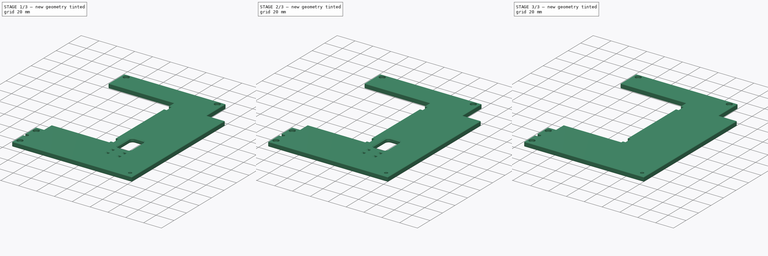
[diagram: build sequence overview — one tinted view per stage of 3, left to right]
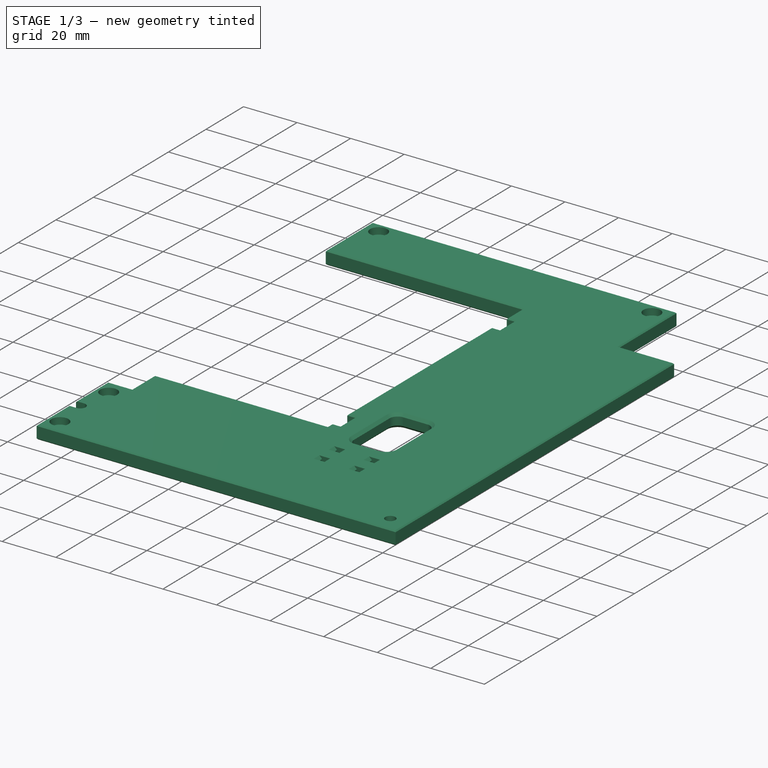
[diagram: stage 1 of 3 — iso view after this stage's code; geometry added in this stage tinted green]
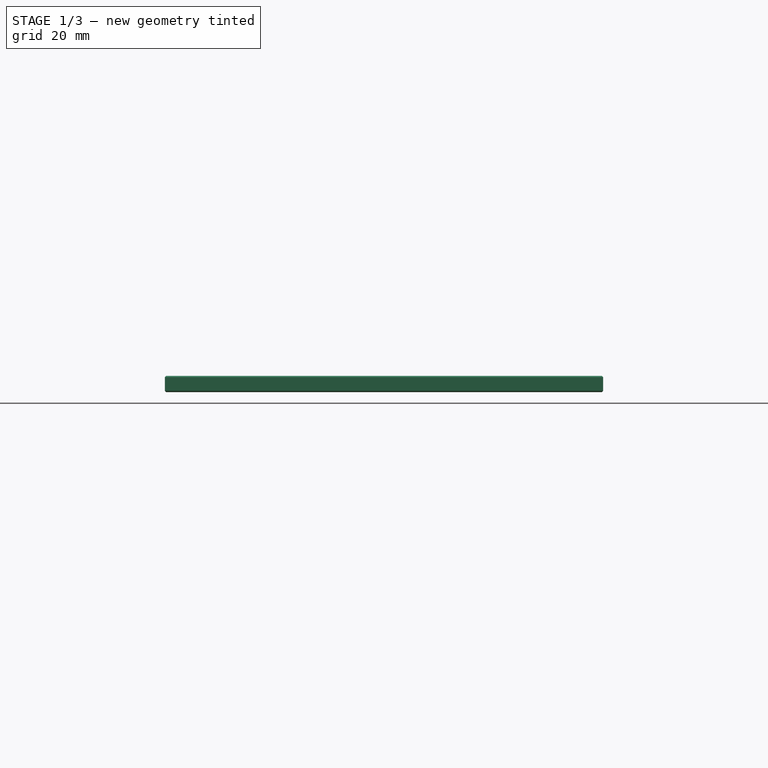
[diagram: stage 1 of 3 — front view after this stage's code; geometry added in this stage tinted green]
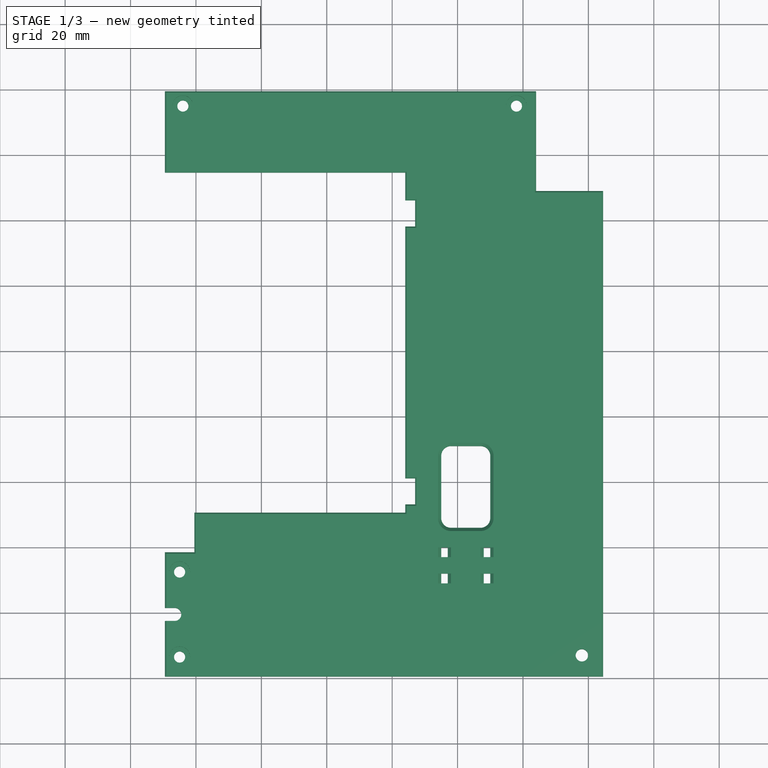
[diagram: stage 1 of 3 — top view after this stage's code; geometry added in this stage tinted green]
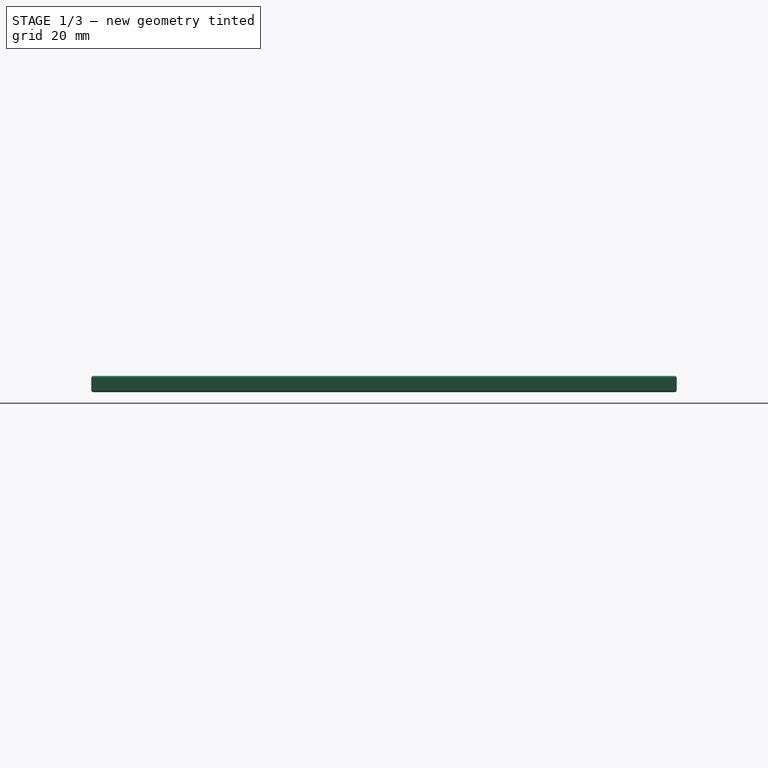
[diagram: stage 1 of 3 — right view after this stage's code; geometry added in this stage tinted green]
FCSTD DOCUMENT  (FreeCAD 0.19R24366 (Git))
Label: bottom-panel-4PR-250
License: All rights reserved
LicenseURL: http://en.wikipedia.org/wiki/All_rights_reserved
objects: PartDesign::FeatureBase×2, Sketcher::SketchObject×2, PartDesign::Body×2, Part::Feature×1, PartDesign::Pocket×1, PartDesign::Chamfer×1, PartDesign::Pad×1
note: 13 computed .brp shape members not serialized (recipe doc carries the construction recipe); baked Part::Feature solids carry a one-line shape summary decoded from their .brp

FEATURE [Part::Feature] Part__Feature081  label="panel-BL"
  shape: bbox 134 x 179 x 5 mm, 131 faces (baked)
FEATURE [PartDesign::FeatureBase] BaseFeature
  BaseFeature = -> Part__Feature081
FEATURE [Sketcher::SketchObject] Sketch
  ExternalGeometry = -> [BaseFeature]
  FullyConstrained = true
  MapMode = 5
  Placement = pos=(0,0,5) rot=(0,0,1;0rad)
  Support = -> [BaseFeature]
  sketch-geometry (4):
    g0: ArcOfCircle CenterX=-186.5 CenterY=19.5 CenterZ=0 NormalX=0 NormalY=0 NormalZ=1 AngleXU=0 Radius=2 StartAngle=4.71239 EndAngle=7.85398
    g1: LineSegment StartX=-189.5 StartY=21.5 StartZ=0 EndX=-186.5 EndY=21.5 EndZ=0
    g2: LineSegment StartX=-189.5 StartY=17.5 StartZ=0 EndX=-186.5 EndY=17.5 EndZ=0
    g3: LineSegment StartX=-189.5 StartY=21.5 StartZ=0 EndX=-189.5 EndY=17.5 EndZ=0
  constraints (14):
    c: Vertical(g0,g0)
    c: Vertical(g0,g0)
    c: Radius(g0) = 2
    c: PointOnObject(g1,g-5)
    c: Coincident(g1,g0)
    c: Horizontal(g1)
    c: PointOnObject(g2,g-5)
    c: Coincident(g2,g0)
    c: Horizontal(g2)
    c: Coincident(g3,g1)
    c: Coincident(g3,g2)
    c: DistanceX(g2,g0) = 3
    c: DistanceY(g-3,g-4) = 26
    c: DistanceY(g0,g-4) = 13
FEATURE [PartDesign::Pocket] Pocket
  BaseFeature = -> BaseFeature
  Length = 5
  Length2 = 100
  Profile = -> Sketch
  Type = 0
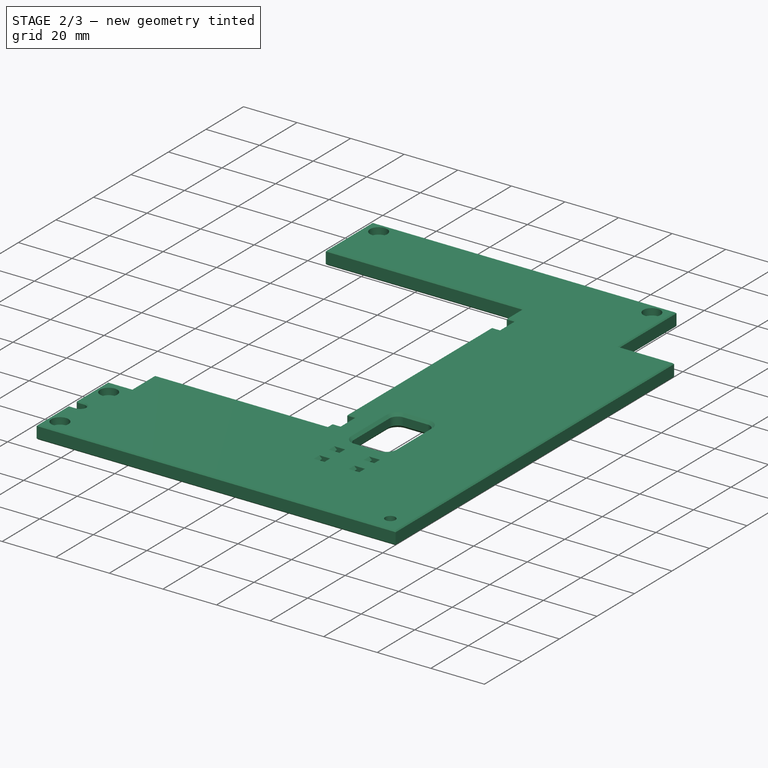
[diagram: stage 2 of 3 — iso view after this stage's code; geometry added in this stage tinted green]
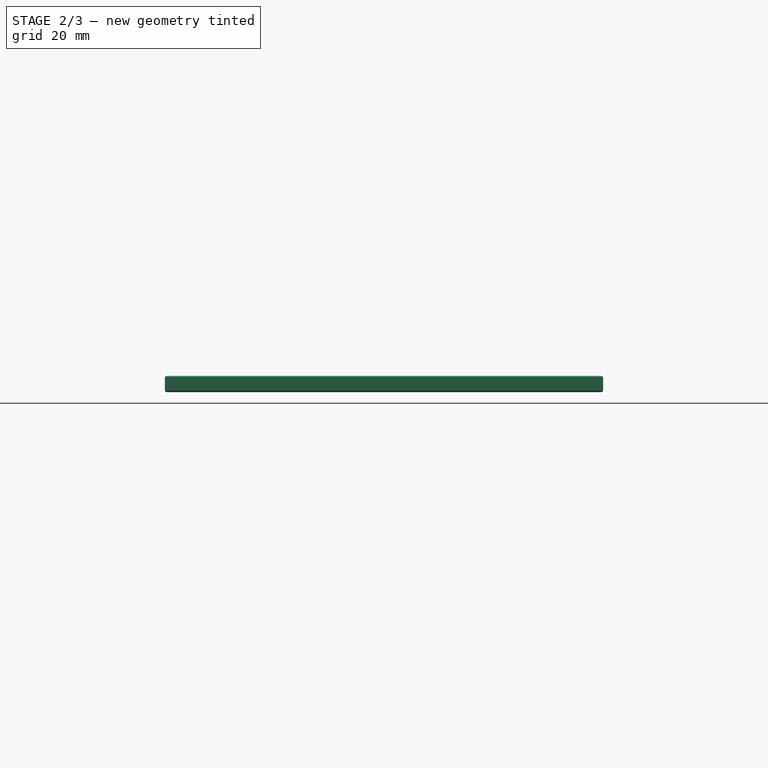
[diagram: stage 2 of 3 — front view after this stage's code; geometry added in this stage tinted green]
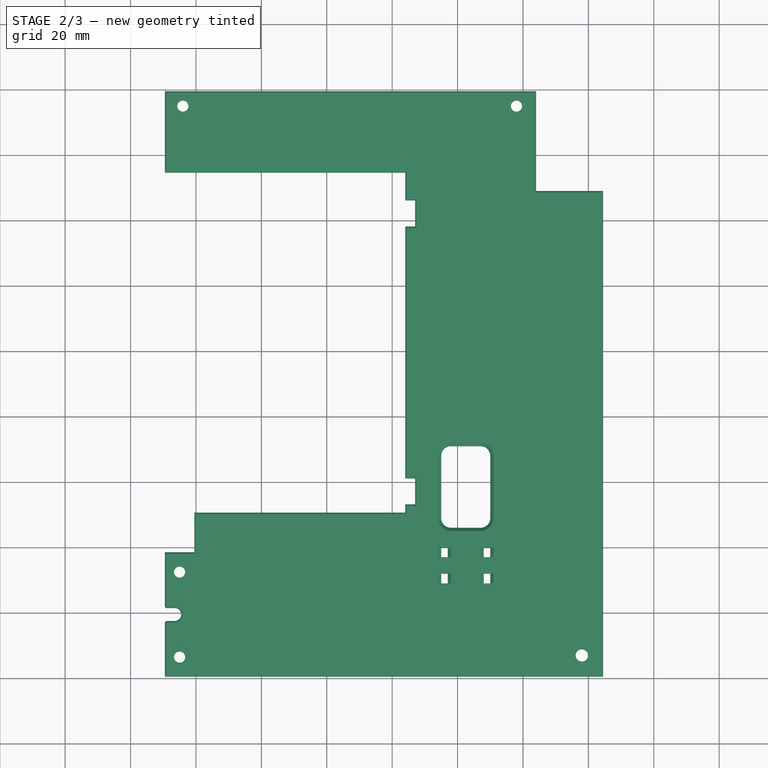
[diagram: stage 2 of 3 — top view after this stage's code; geometry added in this stage tinted green]
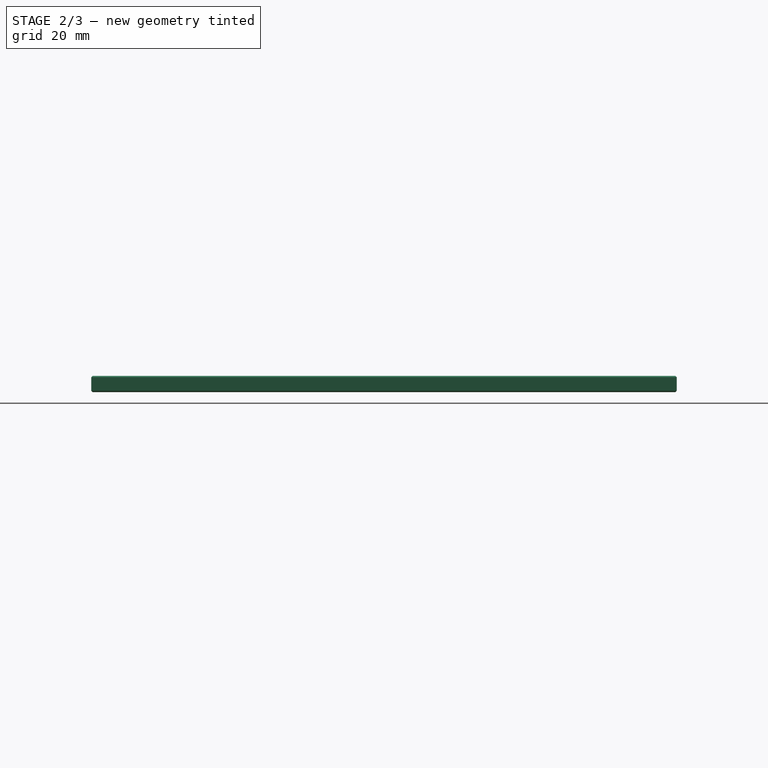
[diagram: stage 2 of 3 — right view after this stage's code; geometry added in this stage tinted green]
FEATURE [PartDesign::Chamfer] Chamfer
  Angle = 45
  Base = -> Pocket [Edge82,Edge79,Edge80,Edge78,Edge74,Edge73,Edge76,Edge81,Edge4,Edge3,Edge2,Edge71]
  BaseFeature = -> Pocket
  ChamferType = 0
  FlipDirection = false
  Size = 0.4
  Size2 = 1
  SupportTransform = false
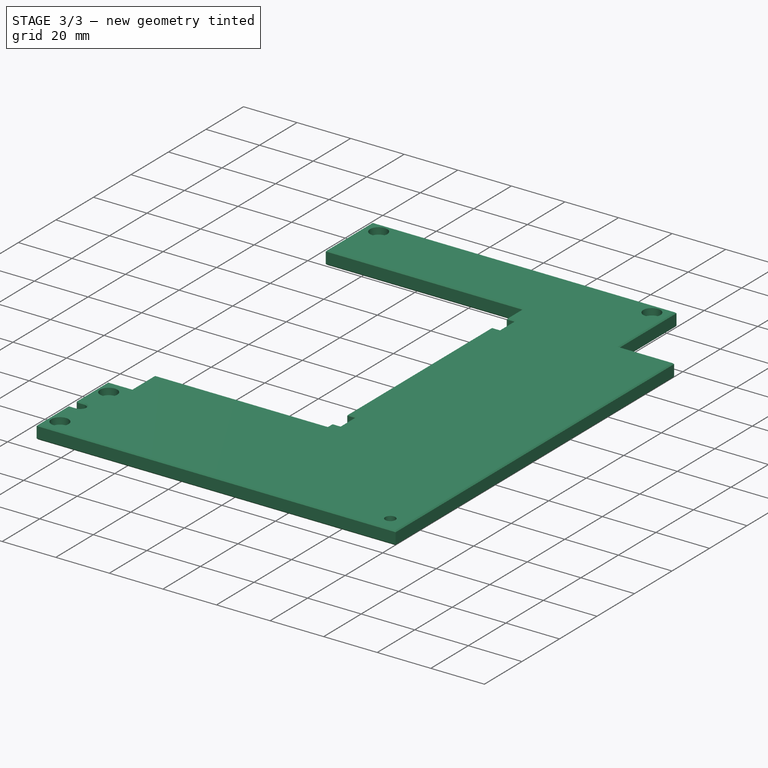
[diagram: stage 3 of 3 — iso view after this stage's code; geometry added in this stage tinted green]
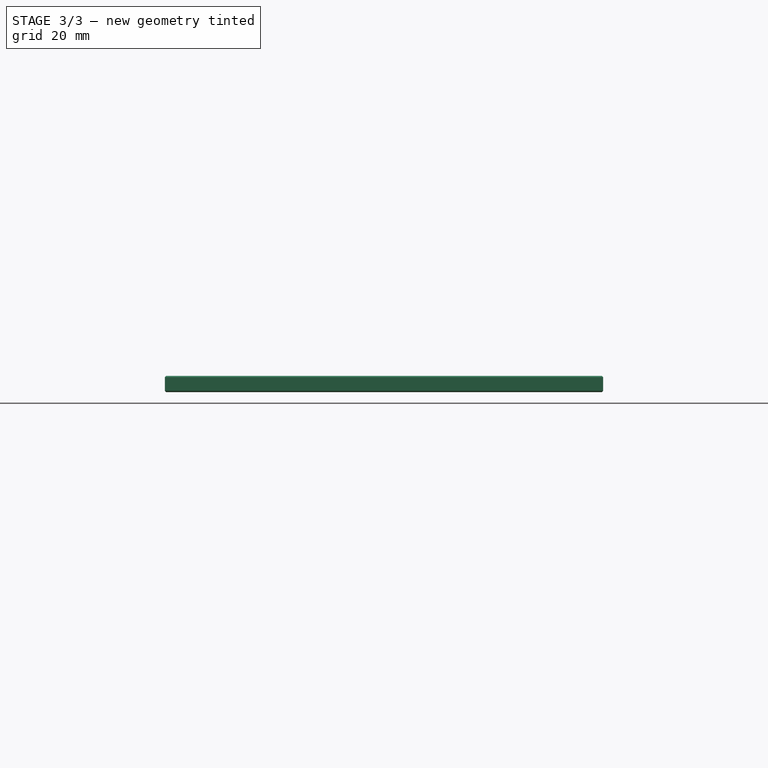
[diagram: stage 3 of 3 — front view after this stage's code; geometry added in this stage tinted green]
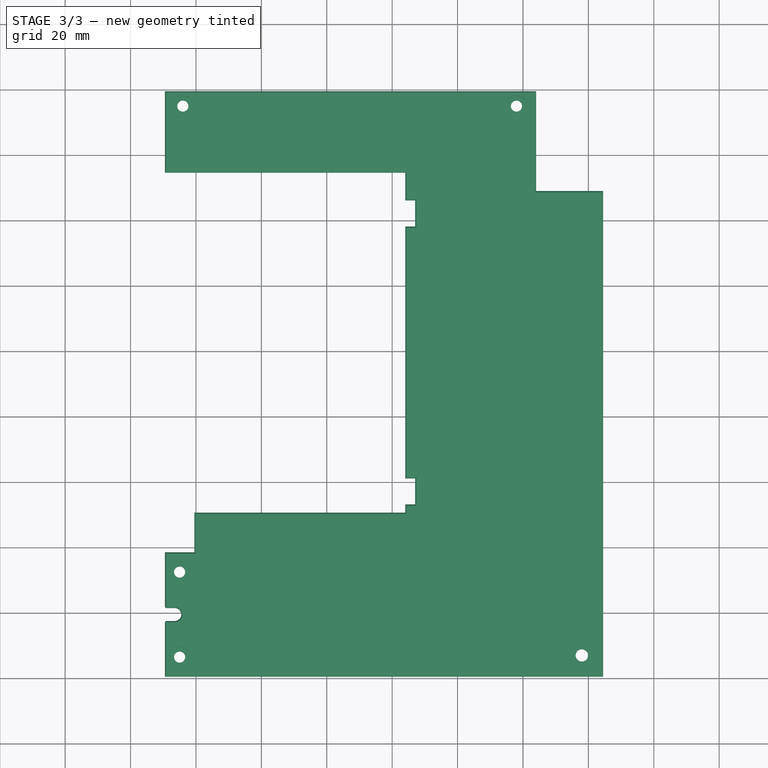
[diagram: stage 3 of 3 — top view after this stage's code; geometry added in this stage tinted green]
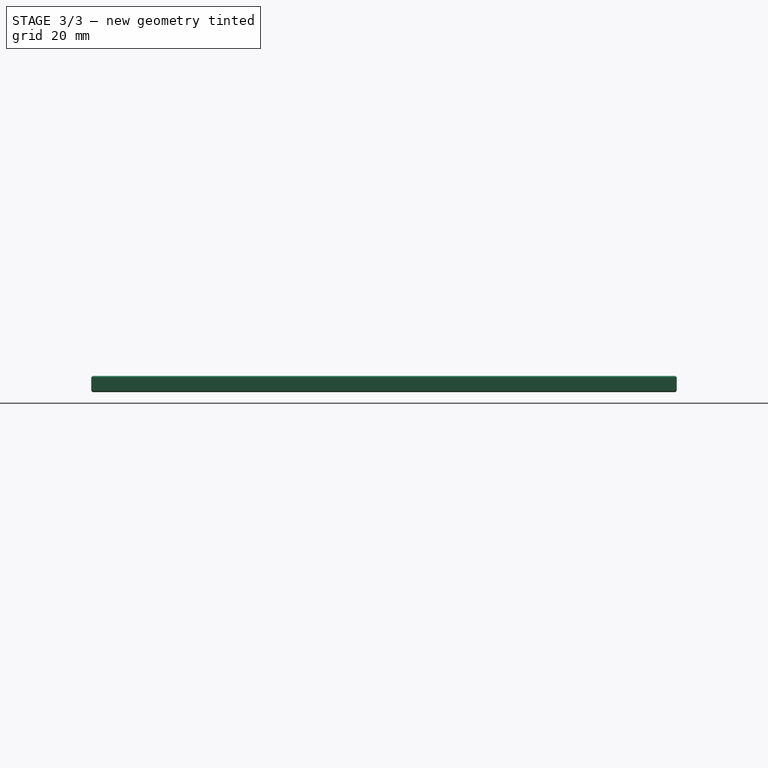
[diagram: stage 3 of 3 — right view after this stage's code; geometry added in this stage tinted green]
FEATURE [PartDesign::Body] Body
  BaseFeature = -> Part__Feature081
  Group = -> [BaseFeature,Sketch,Pocket,Chamfer]
  Origin = -> Origin
  Tip = -> Chamfer
FEATURE [PartDesign::FeatureBase] Clone
  BaseFeature = -> Body
FEATURE [Sketcher::SketchObject] Sketch001
  FullyConstrained = false
  MapMode = 5
  Placement = pos=(0,0,5) rot=(0,0,1;0rad)
  Support = -> [Clone]
  sketch-geometry (4):
    g0: LineSegment StartX=-108.896 StartY=74.4432 StartZ=0 EndX=-85.2263 EndY=74.4432 EndZ=0
    g1: LineSegment StartX=-85.2263 StartY=74.4432 StartZ=0 EndX=-85.2263 EndY=25.7787 EndZ=0
    g2: LineSegment StartX=-85.2263 StartY=25.7787 StartZ=0 EndX=-108.896 EndY=25.7787 EndZ=0
    g3: LineSegment StartX=-108.896 StartY=25.7787 StartZ=0 EndX=-108.896 EndY=74.4432 EndZ=0
  constraints (8):
    c: Coincident(g0,g1)
    c: Coincident(g1,g2)
    c: Coincident(g2,g3)
    c: Coincident(g3,g0)
    c: Horizontal(g0)
    c: Horizontal(g2)
    c: Vertical(g1)
    c: Vertical(g3)
FEATURE [PartDesign::Pad] Pad
  BaseFeature = -> Clone
  Direction = (1,1,1)
  Length = 10
  Length2 = 100
  Profile = -> Sketch001
  Refine = true
  Type = 3
  UpToFace = -> Clone [Face1]
FEATURE [PartDesign::Body] Body001
  Group = -> [Clone,Sketch001,Pad]
  Origin = -> Origin001
  Tip = -> Pad
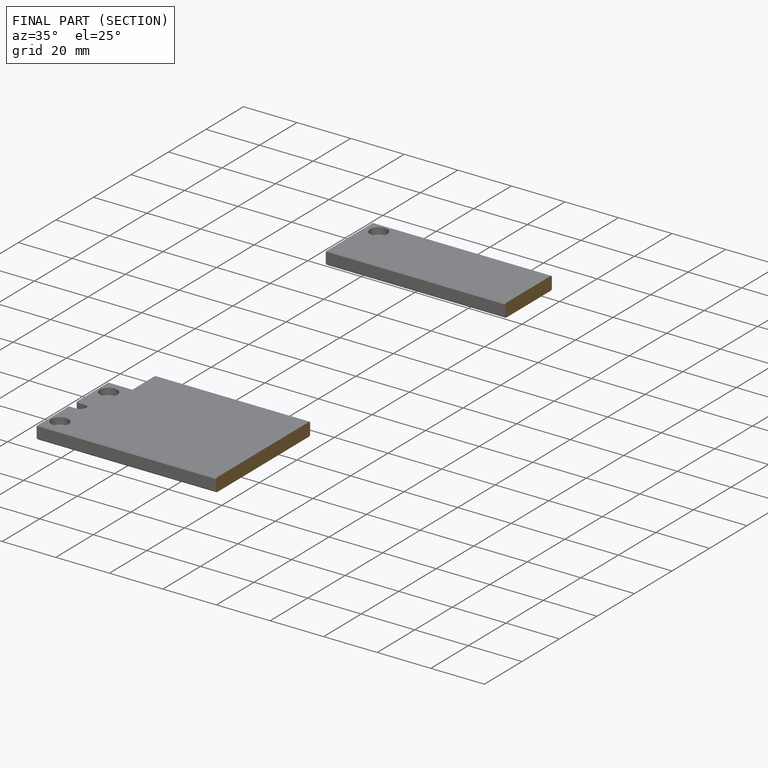
[diagram: finished part — half-section view (interior)]
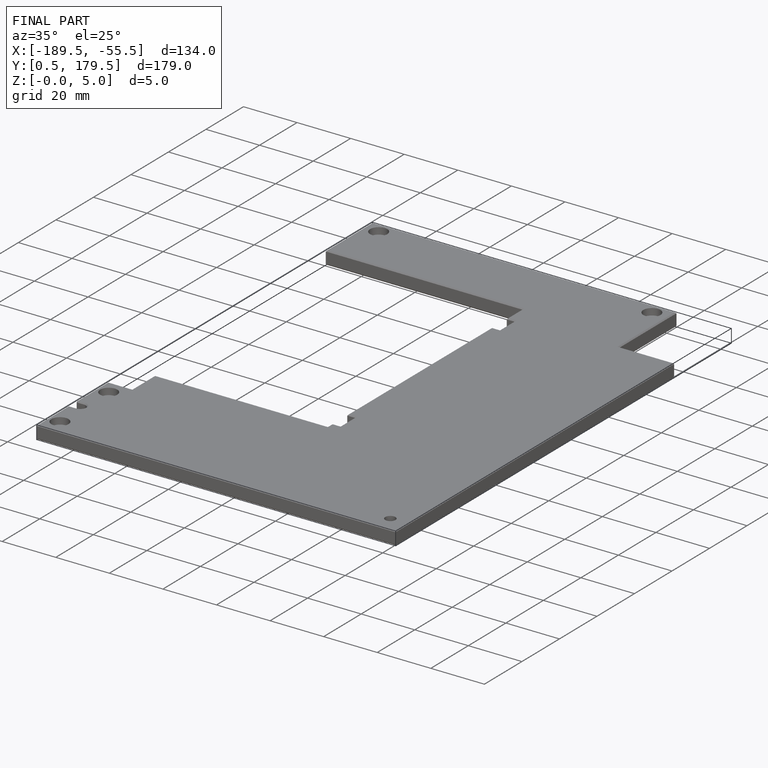
[diagram: finished part — iso view with bounding-box wireframe]
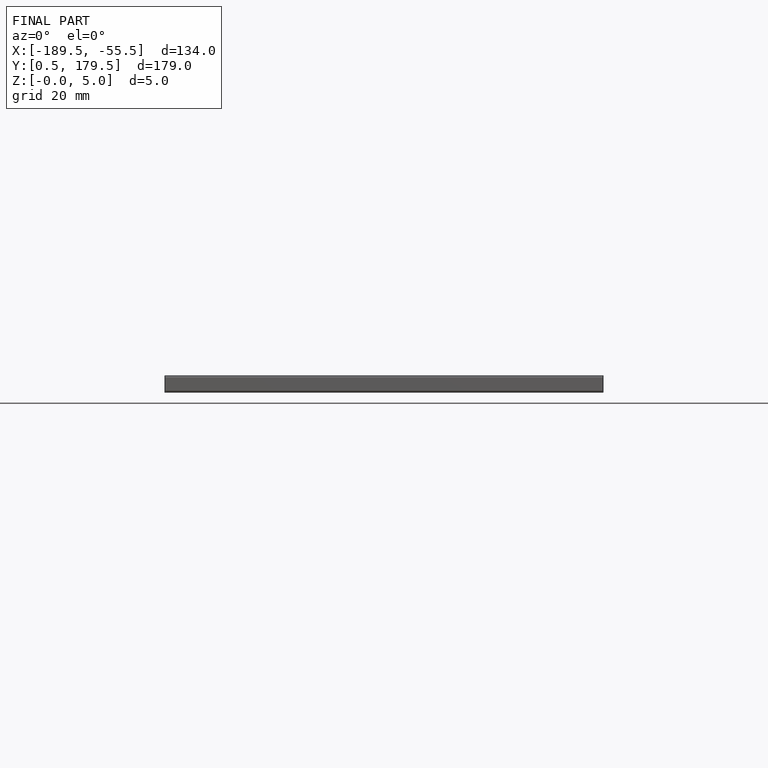
[diagram: finished part — front view with bounding-box wireframe]
